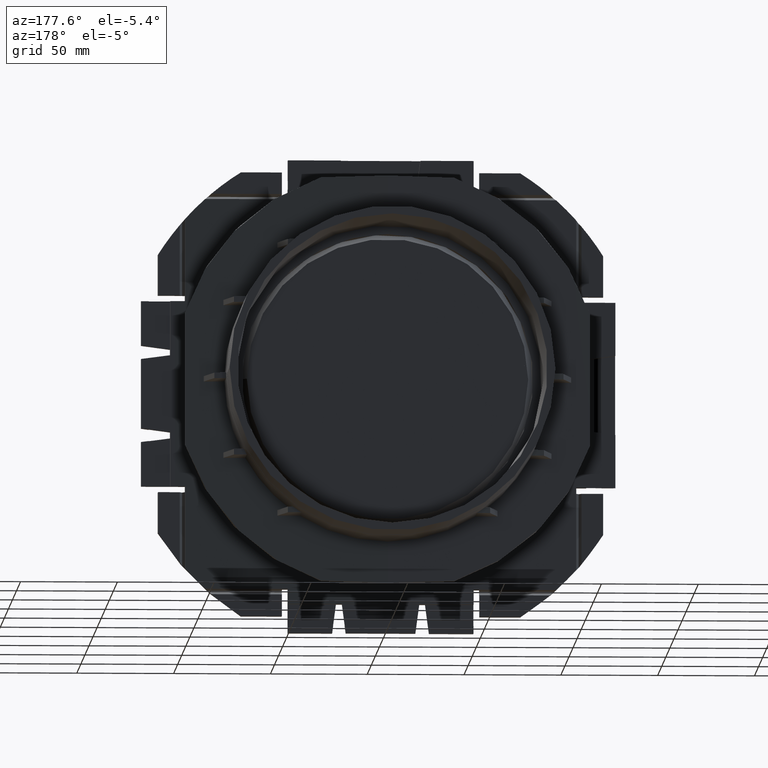
[diagram: clean part render]
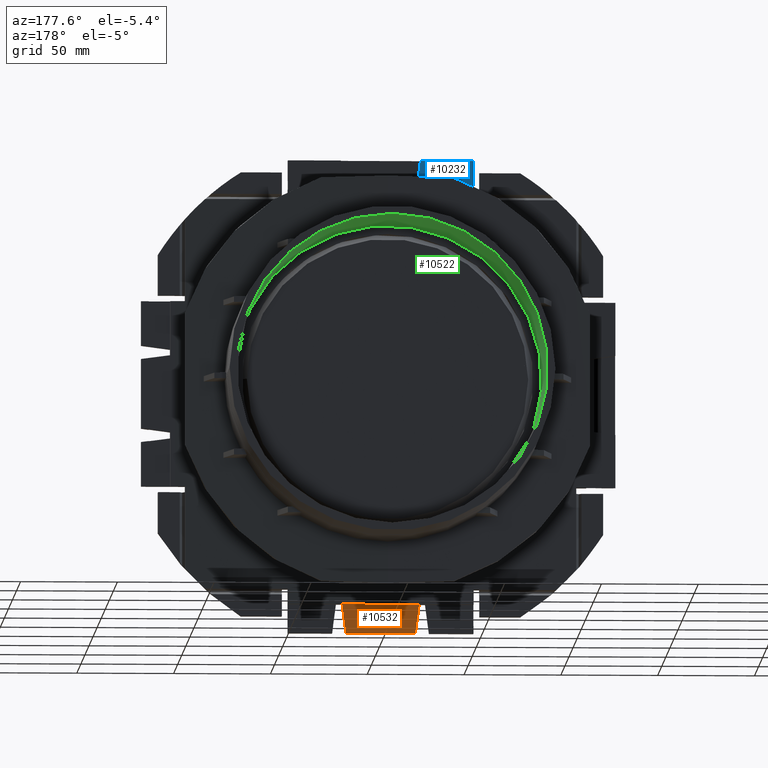
[diagram: same view with three faces highlighted in distinct colors, each labeled with its STEP entity id]
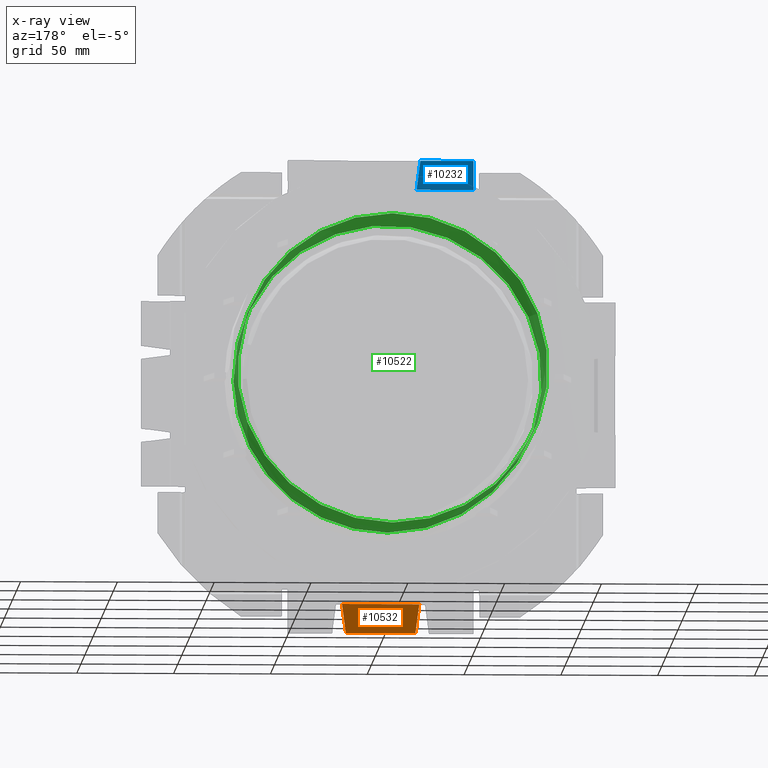
[diagram: x-ray of the same camera — body ghosted, the three highlighted faces saturated]
A machine part, auxiliary view with three faces highlighted in distinct colors.
The next image is the same camera in x-ray (body ghosted, the three faces saturated) — at least one of them is partly hidden behind the body in this view.
Their STEP definitions:

[orange] entity #10532 — the highlighted planar face has unit normal (0, 1, 0).
#1208=FACE_OUTER_BOUND('',#1767,.T.);
#1767=EDGE_LOOP('',(#9059,#9060,#9061,#9062));
#2282=LINE('',#17747,#3266);
#2669=LINE('',#19980,#3653);
#2731=LINE('',#20105,#3715);
#2741=LINE('',#20122,#3725);
#3266=VECTOR('',#12639,10.);
#3653=VECTOR('',#13528,10.);
#3715=VECTOR('',#13674,10.);
#3725=VECTOR('',#13692,10.);
#4461=VERTEX_POINT('',#17744);
#4462=VERTEX_POINT('',#17746);
#4667=VERTEX_POINT('',#19977);
#4668=VERTEX_POINT('',#19979);
#5590=EDGE_CURVE('',#4461,#4462,#2282,.T.);
#6070=EDGE_CURVE('',#4668,#4667,#2669,.T.);
#6132=EDGE_CURVE('',#4462,#4667,#2731,.T.);
#6142=EDGE_CURVE('',#4668,#4461,#2741,.T.);
#9059=ORIENTED_EDGE('',*,*,#6132,.F.);
#9060=ORIENTED_EDGE('',*,*,#5590,.F.);
#9061=ORIENTED_EDGE('',*,*,#6142,.F.);
#9062=ORIENTED_EDGE('',*,*,#6070,.T.);
#9467=PLANE('',#11315);
#10532=ADVANCED_FACE('',(#1208),#9467,.T.);
#11315=AXIS2_PLACEMENT_3D('',#20182,#13773,#13774);
#12639=DIRECTION('',(1.,0.,0.));
#13528=DIRECTION('',(1.,0.,0.));
#13674=DIRECTION('',(0.132163720091018,0.,0.991227900682635));
#13692=DIRECTION('',(0.132163720091018,0.,-0.991227900682635));
#13773=DIRECTION('center_axis',(0.,1.,0.));
#13774=DIRECTION('ref_axis',(0.,0.,1.));
#17744=CARTESIAN_POINT('',(-17.9471713873786,-84.5,-123.7));
#17746=CARTESIAN_POINT('',(17.9471713873786,-84.5,-123.7));
#17747=CARTESIAN_POINT('',(-48.,-84.5,-123.7));
#19977=CARTESIAN_POINT('',(19.9518260713595,-84.5,-108.665089870144));
#19979=CARTESIAN_POINT('',(-19.9518260713595,-84.5,-108.665089870144));
#19980=CARTESIAN_POINT('',(-12.,-84.5,-108.665089870144));
#20105=CARTESIAN_POINT('',(26.3935090050663,-84.5,-60.3524678673422));
#20122=CARTESIAN_POINT('',(-26.3935090050663,-84.5,-60.3524678673422));
#20182=CARTESIAN_POINT('Origin',(-8.36431586720248E-15,-84.5,-3.48946708783352E-15));

[blue] entity #10232 — the highlighted planar face has unit normal (0, 1, 0).
#908=FACE_OUTER_BOUND('',#1466,.T.);
#1466=EDGE_LOOP('',(#7688,#7689,#7690,#7691));
#2337=LINE('',#17937,#3321);
#2401=LINE('',#18574,#3385);
#2402=LINE('',#18576,#3386);
#2403=LINE('',#18577,#3387);
#3321=VECTOR('',#12716,10.);
#3385=VECTOR('',#12810,10.);
#3386=VECTOR('',#12811,10.);
#3387=VECTOR('',#12812,10.);
#4499=VERTEX_POINT('',#17934);
#4500=VERTEX_POINT('',#17936);
#4543=VERTEX_POINT('',#18573);
#4544=VERTEX_POINT('',#18575);
#5648=EDGE_CURVE('',#4499,#4500,#2337,.T.);
#5733=EDGE_CURVE('',#4499,#4543,#2401,.F.);
#5734=EDGE_CURVE('',#4544,#4543,#2402,.F.);
#5735=EDGE_CURVE('',#4544,#4500,#2403,.T.);
#7688=ORIENTED_EDGE('',*,*,#5733,.T.);
#7689=ORIENTED_EDGE('',*,*,#5734,.F.);
#7690=ORIENTED_EDGE('',*,*,#5735,.T.);
#7691=ORIENTED_EDGE('',*,*,#5648,.F.);
#9255=PLANE('',#11011);
#10232=ADVANCED_FACE('',(#908),#9255,.T.);
#11011=AXIS2_PLACEMENT_3D('',#18572,#12808,#12809);
#12716=DIRECTION('',(-1.,0.,-6.12323399573677E-17));
#12808=DIRECTION('center_axis',(0.,1.,0.));
#12809=DIRECTION('ref_axis',(0.,0.,1.));
#12810=DIRECTION('',(-0.132163720091018,0.,0.991227900682635));
#12811=DIRECTION('',(-1.,0.,0.));
#12812=DIRECTION('',(-6.12416673599373E-17,0.,1.));
#17934=CARTESIAN_POINT('',(-20.5528286126214,-84.5,121.2));
#17936=CARTESIAN_POINT('',(-47.9911345078446,-84.5,121.2));
#17937=CARTESIAN_POINT('',(-1.23892409847496E-14,-84.5,121.2));
#18572=CARTESIAN_POINT('Origin',(-8.36431586720248E-15,-84.5,-3.48946708783352E-15));
#18573=CARTESIAN_POINT('',(-18.5458465866501,-84.5,106.147634805215));
#18574=CARTESIAN_POINT('',(-11.4340019119642,-84.5,52.8087997450714));
#18575=CARTESIAN_POINT('',(-47.9911345078446,-84.5,106.147634805215));
#18576=CARTESIAN_POINT('',(-12.,-84.5,106.147634805215));
#18577=CARTESIAN_POINT('',(-47.9911345078446,-84.5,57.45));

[green] entity #10522 — the highlighted conical surface has half-angle 0.5 deg.
#143=CONICAL_SURFACE('',#11305,79.8816488154342,0.00872664625997139);
#633=CIRCLE('',#11000,80.15);
#681=CIRCLE('',#11302,79.6132976308684);
#682=CIRCLE('',#11303,79.6132976308684);
#1198=FACE_OUTER_BOUND('',#1757,.T.);
#1757=EDGE_LOOP('',(#9017,#9018,#9019,#9020,#9021));
#2749=LINE('',#20164,#3733);
#3733=VECTOR('',#13746,79.8816488154342);
#4514=VERTEX_POINT('',#18272);
#4702=VERTEX_POINT('',#20158);
#4703=VERTEX_POINT('',#20159);
#5679=EDGE_CURVE('',#4514,#4514,#633,.T.);
#6158=EDGE_CURVE('',#4702,#4703,#681,.T.);
#6159=EDGE_CURVE('',#4703,#4702,#682,.T.);
#6160=EDGE_CURVE('',#4514,#4703,#2749,.T.);
#9017=ORIENTED_EDGE('',*,*,#5679,.T.);
#9018=ORIENTED_EDGE('',*,*,#6160,.T.);
#9019=ORIENTED_EDGE('',*,*,#6158,.F.);
#9020=ORIENTED_EDGE('',*,*,#6159,.F.);
#9021=ORIENTED_EDGE('',*,*,#6160,.F.);
#10522=ADVANCED_FACE('',(#1198),#143,.F.);
#11000=AXIS2_PLACEMENT_3D('',#18273,#12740,#12741);
#11302=AXIS2_PLACEMENT_3D('',#20160,#13738,#13739);
#11303=AXIS2_PLACEMENT_3D('',#20161,#13740,#13741);
#11305=AXIS2_PLACEMENT_3D('',#20163,#13744,#13745);
#12740=DIRECTION('center_axis',(0.,1.,0.));
#12741=DIRECTION('ref_axis',(0.,0.,1.));
#13738=DIRECTION('center_axis',(0.,1.,0.));
#13739=DIRECTION('ref_axis',(0.,0.,-1.));
#13740=DIRECTION('center_axis',(0.,1.,0.));
#13741=DIRECTION('ref_axis',(0.,0.,-1.));
#13744=DIRECTION('center_axis',(0.,1.,0.));
#13745=DIRECTION('ref_axis',(0.,0.,1.));
#13746=DIRECTION('',(1.06869237657291E-18,-0.999961923064171,0.00872653549837368));
#18272=CARTESIAN_POINT('',(-9.81554409516604E-15,61.5,-80.15));
#18273=CARTESIAN_POINT('Origin',(0.,61.5,0.));
#20158=CARTESIAN_POINT('',(79.5991655713879,0.,-1.5));
#20159=CARTESIAN_POINT('',(-9.74981701132085E-15,-1.77635683940025E-14,
-79.6132976308684));
#20160=CARTESIAN_POINT('Origin',(0.,-8.88178419700125E-15,0.));
#20161=CARTESIAN_POINT('Origin',(0.,-8.88178419700125E-15,0.));
#20163=CARTESIAN_POINT('Origin',(0.,30.75,0.));
#20164=CARTESIAN_POINT('',(-9.78268055324344E-15,30.75,-79.8816488154342));